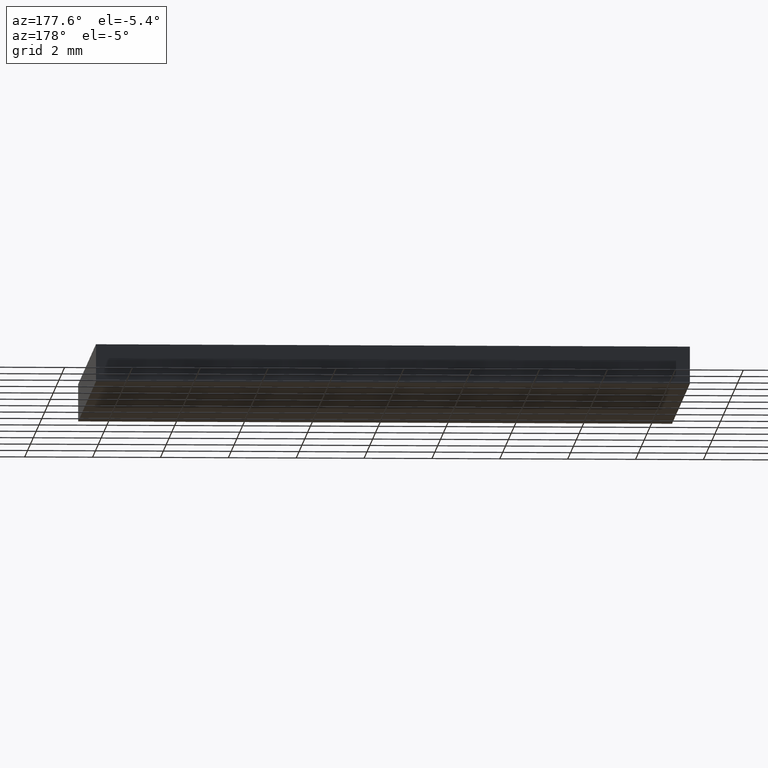
[diagram: clean part render]
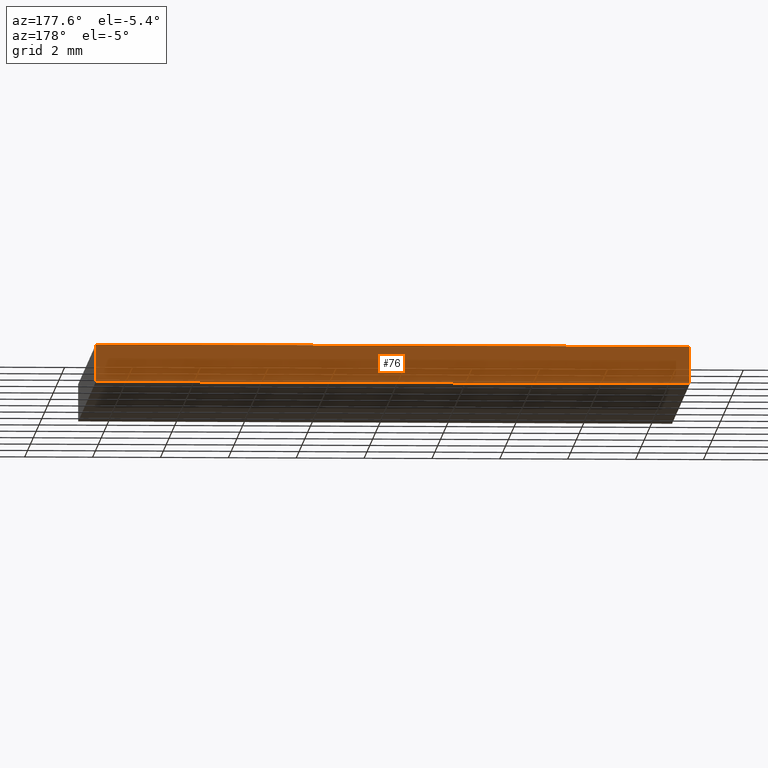
[diagram: same view with one face highlighted and labeled with its STEP entity id]
A machine part, auxiliary view. The second image highlights one B-rep face of the part: STEP entity #76.
In plain terms, the highlighted planar face has unit normal (0, -1, 0).
Its self-contained STEP definition (entity closure, byte-faithful):
#30 = DIRECTION ( 'NONE',  ( -1.000000000000000000, -0.0000000000000000000, -0.0000000000000000000 ) ) ;
#34 = ORIENTED_EDGE ( 'NONE', *, *, #290, .T. ) ;
#47 = DIRECTION ( 'NONE',  ( -0.0000000000000000000, -0.0000000000000000000, -1.000000000000000000 ) ) ;
#63 = LINE ( 'NONE', #78, #126 ) ;
#66 = EDGE_CURVE ( 'NONE', #249, #173, #63, .T. ) ;
#70 = EDGE_CURVE ( 'NONE', #249, #296, #236, .T. ) ;
#76 = ADVANCED_FACE ( 'NONE', ( #261 ), #299, .F. ) ;
#78 = CARTESIAN_POINT ( 'NONE',  ( -8.750000000000000000, 6.250000000000000900, 1.100000000000000100 ) ) ;
#89 = VECTOR ( 'NONE', #47, 1000.000000000000000 ) ;
#109 = DIRECTION ( 'NONE',  ( -0.0000000000000000000, -0.0000000000000000000, -1.000000000000000000 ) ) ;
#112 = CARTESIAN_POINT ( 'NONE',  ( -8.750000000000000000, 6.250000000000000900, 0.0000000000000000000 ) ) ;
#126 = VECTOR ( 'NONE', #30, 1000.000000000000000 ) ;
#149 = LINE ( 'NONE', #276, #89 ) ;
#156 = CARTESIAN_POINT ( 'NONE',  ( -8.750000000000000000, 6.250000000000000900, 1.100000000000000100 ) ) ;
#158 = VECTOR ( 'NONE', #109, 1000.000000000000000 ) ;
#162 = DIRECTION ( 'NONE',  ( -1.000000000000000000, -0.0000000000000000000, -0.0000000000000000000 ) ) ;
#173 = VERTEX_POINT ( 'NONE', #307 ) ;
#178 = DIRECTION ( 'NONE',  ( 0.0000000000000000000, -1.000000000000000000, 0.0000000000000000000 ) ) ;
#181 = CARTESIAN_POINT ( 'NONE',  ( 8.750000000000000000, 6.250000000000000900, 1.100000000000000100 ) ) ;
#185 = VECTOR ( 'NONE', #162, 1000.000000000000000 ) ;
#204 = CARTESIAN_POINT ( 'NONE',  ( 8.750000000000000000, 6.250000000000000900, 0.0000000000000000000 ) ) ;
#209 = ORIENTED_EDGE ( 'NONE', *, *, #70, .T. ) ;
#216 = ORIENTED_EDGE ( 'NONE', *, *, #66, .F. ) ;
#217 = AXIS2_PLACEMENT_3D ( 'NONE', #156, #178, #224 ) ;
#221 = VERTEX_POINT ( 'NONE', #112 ) ;
#224 = DIRECTION ( 'NONE',  ( 0.0000000000000000000, -0.0000000000000000000, -1.000000000000000000 ) ) ;
#228 = CARTESIAN_POINT ( 'NONE',  ( -8.750000000000000000, 6.250000000000000900, 0.0000000000000000000 ) ) ;
#236 = LINE ( 'NONE', #245, #158 ) ;
#237 = EDGE_CURVE ( 'NONE', #173, #221, #149, .T. ) ;
#245 = CARTESIAN_POINT ( 'NONE',  ( 8.750000000000000000, 6.250000000000000900, 1.100000000000000100 ) ) ;
#249 = VERTEX_POINT ( 'NONE', #181 ) ;
#261 = FACE_OUTER_BOUND ( 'NONE', #284, .T. ) ;
#274 = ORIENTED_EDGE ( 'NONE', *, *, #237, .F. ) ;
#276 = CARTESIAN_POINT ( 'NONE',  ( -8.750000000000000000, 6.250000000000000900, 1.100000000000000100 ) ) ;
#284 = EDGE_LOOP ( 'NONE', ( #34, #274, #216, #209 ) ) ;
#290 = EDGE_CURVE ( 'NONE', #296, #221, #292, .T. ) ;
#292 = LINE ( 'NONE', #228, #185 ) ;
#296 = VERTEX_POINT ( 'NONE', #204 ) ;
#299 = PLANE ( 'NONE',  #217 ) ;
#307 = CARTESIAN_POINT ( 'NONE',  ( -8.750000000000000000, 6.250000000000000900, 1.100000000000000100 ) ) ;